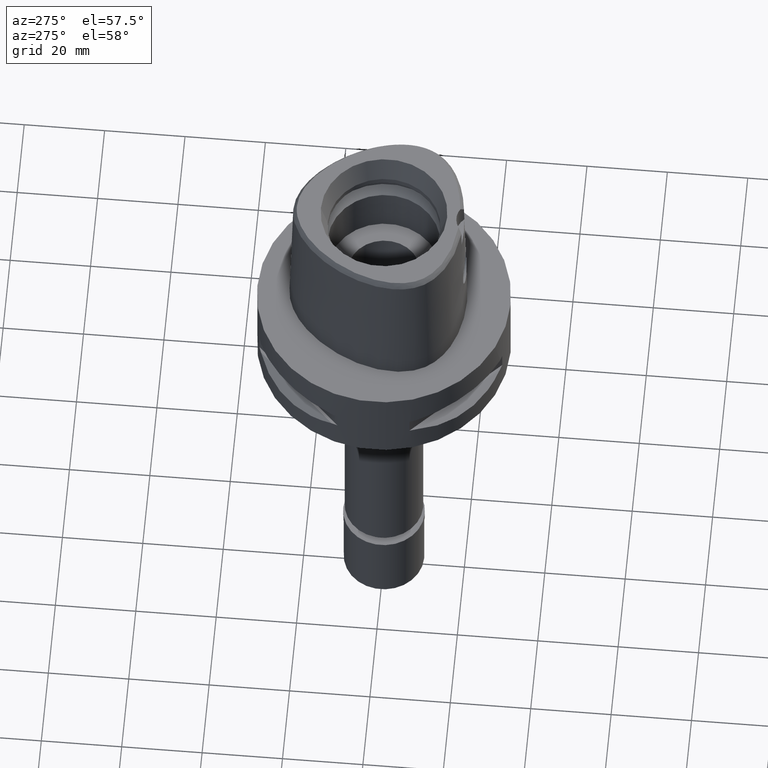
[diagram: clean part render]
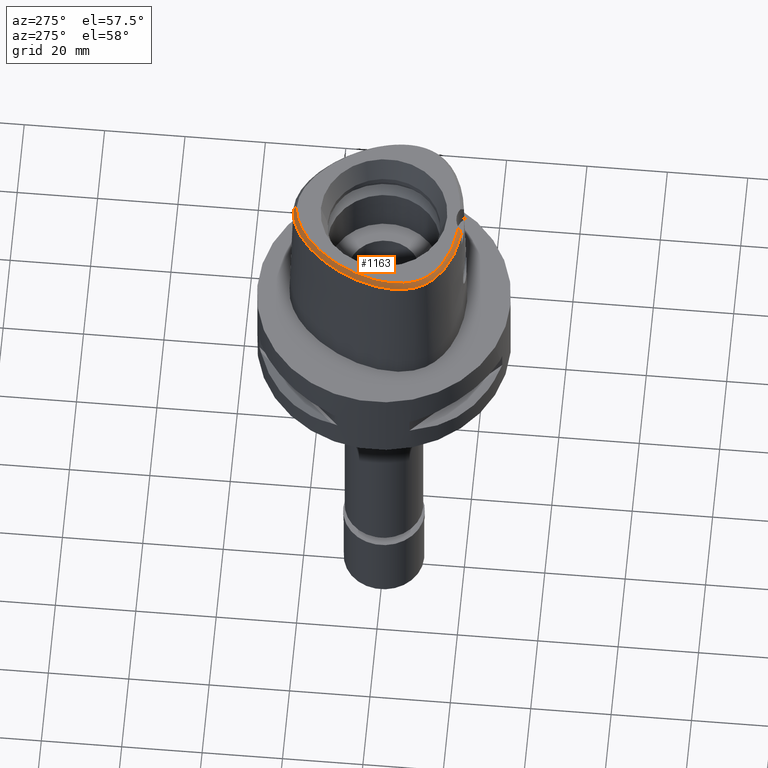
[diagram: same view with one face highlighted and labeled with its STEP entity id]
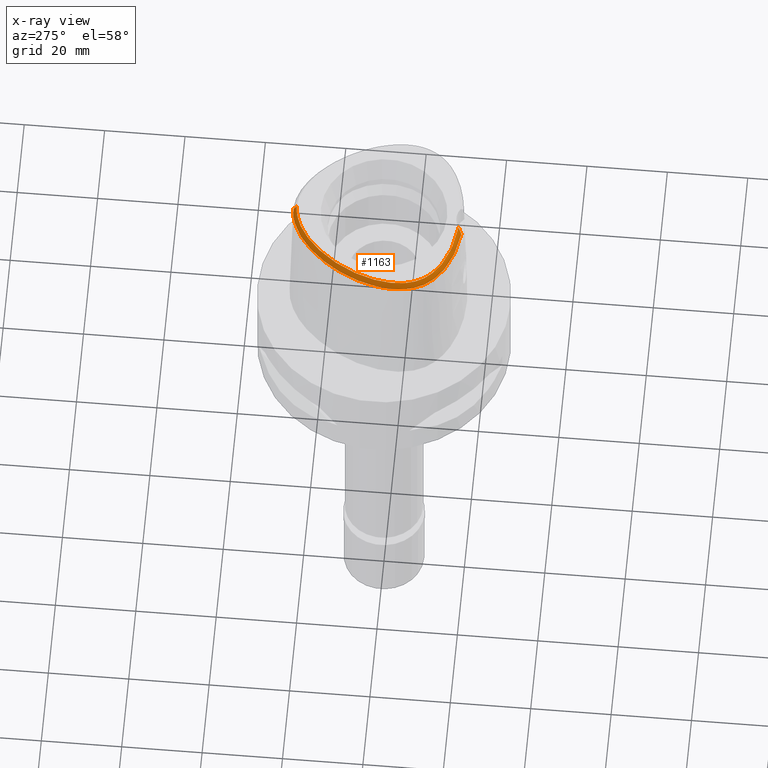
[diagram: x-ray of the same camera — body ghosted, the highlighted face saturated]
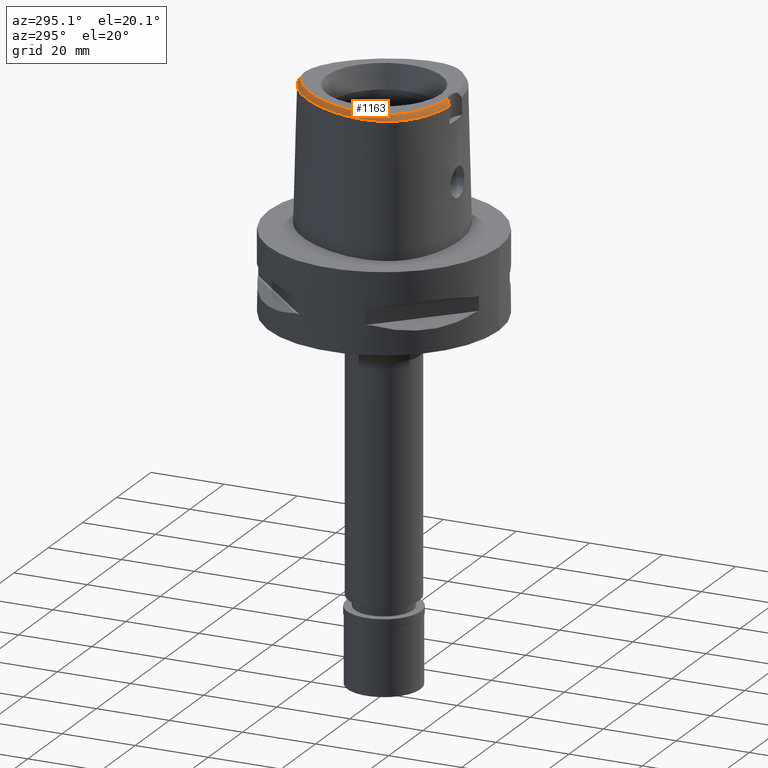
[diagram: same view with one face highlighted and labeled with its STEP entity id]
A machine part, auxiliary view. The second image highlights one B-rep face of the part: STEP entity #1163.
The next image is the same camera in x-ray: the body ghosted, the highlighted face saturated — about 0% of this face is hidden behind the body in this view.
A second angle (auxiliary view) of the same face is appended — the face is thin or edge-on in the first view.
In plain terms, the highlighted face is a freeform B-spline surface patch.
Its self-contained STEP definition (entity closure, byte-faithful):
#13 = CARTESIAN_POINT ( 'NONE',  ( -10.66256195749000035, 17.05506717343999767, 37.56759634049999619 ) ) ;
#19 = CARTESIAN_POINT ( 'NONE',  ( -13.33457781970174416, -15.85148397417496291, 38.00000000000325429 ) ) ;
#40 = CARTESIAN_POINT ( 'NONE',  ( -19.54057478934999992, 1.493607280873000098, 38.18095997088000360 ) ) ;
#47 = CARTESIAN_POINT ( 'NONE',  ( -5.058220461389721478, 20.53445508814391474, 37.99999999999948130 ) ) ;
#64 = CARTESIAN_POINT ( 'NONE',  ( -14.55025428635000040, 12.69926711138000108, 37.56759547042999969 ) ) ;
#65 = CARTESIAN_POINT ( 'NONE',  ( 0.6289092949151000589, 22.28927437255999777, 36.95422980688000081 ) ) ;
#68 = CARTESIAN_POINT ( 'NONE',  ( -6.188376196366935922, -18.31830638231286912, 37.99999999999585043 ) ) ;
#76 = CARTESIAN_POINT ( 'NONE',  ( -3.014271304877154556, -18.99139391534703591, 37.59976690303471969 ) ) ;
#85 = CARTESIAN_POINT ( 'NONE',  ( -19.88562090098168511, 4.345879983792093171, 36.52186244848008556 ) ) ;
#89 = CARTESIAN_POINT ( 'NONE',  ( -20.24400256382999785, 1.674241162565999863, 36.95423284470999903 ) ) ;
#91 = CARTESIAN_POINT ( 'NONE',  ( -1.400656934287000110, 22.22543964575000075, 36.95422974118000070 ) ) ;
#116 = CARTESIAN_POINT ( 'NONE',  ( -17.37216246377000317, -13.66586443400000128, 36.95423005896999769 ) ) ;
#118 = CARTESIAN_POINT ( 'NONE',  ( -5.311478316524000043, 21.09948932654999965, 36.95423043509000394 ) ) ;
#139 = B_SPLINE_CURVE_WITH_KNOTS ( 'NONE', 3,
 ( #4758, #3432, #809, #859, #1594, #3561, #1859, #2427, #1242, #1472, #2345, #4991, #1265, #421, #85, #3615, #1090, #4003, #470, #3818, #3049, #3921, #3196 ),
 .UNSPECIFIED., .F., .F.,
 ( 4, 1, 1, 1, 1, 1, 1, 1, 1, 1, 1, 1, 1, 1, 1, 1, 1, 1, 1, 1, 4 ),
 ( 0.0000000000000000000, 0.03580973941721924542, 0.1234633994701801463, 0.1672902294965028236, 0.2111170595230359437, 0.2549438895494638424, 0.2768573045626777085, 0.2987707195758917411, 0.3206841345892108563, 0.3425975496024247224, 0.3864243796288526211, 0.4302512096552805199, 0.4740780396817084186, 0.5617316997346692986, 0.6493853597876302342, 0.7370390198404860316, 0.8246926798933418290, 0.8685195099198749213, 0.9123463399462922174, 0.9561731699727411549, 1.000000000000000000 ),
 .UNSPECIFIED. ) ;
#141 = CARTESIAN_POINT ( 'NONE',  ( -20.40284405066000062, -7.069803685269000049, 37.56759523118999766 ) ) ;
#143 = CARTESIAN_POINT ( 'NONE',  ( -6.705033050041000031, 19.56224517346999647, 38.18096044239999998 ) ) ;
#163 = CARTESIAN_POINT ( 'NONE',  ( -21.11760553026999787, -7.199102701368000901, 36.34086476699000201 ) ) ;
#165 = CARTESIAN_POINT ( 'NONE',  ( -8.514304571949999456, 18.36058416618999800, 38.18096050130999686 ) ) ;
#185 = CARTESIAN_POINT ( 'NONE',  ( -21.34428069822999774, -5.342019748918999333, 36.34086596496999988 ) ) ;
#210 = CARTESIAN_POINT ( 'NONE',  ( -20.63876692223999854, -3.266836172437999952, 37.56759527082000005 ) ) ;
#233 = CARTESIAN_POINT ( 'NONE',  ( -15.65189600198999642, -14.21401850576000037, 38.18096042716000227 ) ) ;
#259 = CARTESIAN_POINT ( 'NONE',  ( -11.41529577253000127, -17.04472489425999981, 37.56759521252999434 ) ) ;
#283 = CARTESIAN_POINT ( 'NONE',  ( -3.626155504780999905, -19.68468267345999934, 36.34086585567000327 ) ) ;
#305 = VERTEX_POINT ( 'NONE', #4733 ) ;
#307 = CARTESIAN_POINT ( 'NONE',  ( -7.745912935872000027, -18.61162622464000194, 36.95423201581999706 ) ) ;
#336 = CARTESIAN_POINT ( 'NONE',  ( -2.084321703512999502, -19.07919178942000116, 37.56759551681999909 ) ) ;
#351 = CARTESIAN_POINT ( 'NONE',  ( -2.841965291530460735, -18.76757795571698395, 37.99999999999811706 ) ) ;
#357 = ORIENTED_EDGE ( 'NONE', *, *, #3039, .F. ) ;
#369 = CARTESIAN_POINT ( 'NONE',  ( -20.90431952104000146, 0.4206167189860000599, 36.34086851486999592 ) ) ;
#377 = CARTESIAN_POINT ( 'NONE',  ( -16.88647904405386768, 8.517821442303011636, 37.99999999999936762 ) ) ;
#396 = CARTESIAN_POINT ( 'NONE',  ( -21.13133980123999933, -0.8626773462562999928, 36.34086547350999297 ) ) ;
#404 = CARTESIAN_POINT ( 'NONE',  ( -14.21001600787387886, -15.34519100085903709, 37.99999999999946709 ) ) ;
#421 = CARTESIAN_POINT ( 'NONE',  ( -21.07430010673126830, -0.4408303445193108017, 36.52186244848008556 ) ) ;
#425 = CARTESIAN_POINT ( 'NONE',  ( -16.94083516559999936, 10.41317883283999990, 36.34086497297999330 ) ) ;
#428 = CARTESIAN_POINT ( 'NONE',  ( -2.798112137964000379, 21.59390788522999927, 37.56759543479000030 ) ) ;
#431 = CARTESIAN_POINT ( 'NONE',  ( -6.759433772717353683, 19.65454812512683702, 37.99999999999300115 ) ) ;
#451 = CARTESIAN_POINT ( 'NONE',  ( -19.14877230880999903, 6.051190956035999768, 36.34086529085000450 ) ) ;
#452 = CARTESIAN_POINT ( 'NONE',  ( -4.475033938823999691, 21.44522990907000448, 36.95423009969999839 ) ) ;
#457 = CARTESIAN_POINT ( 'NONE',  ( -3.481017203588929743, 21.13509756882016077, 37.99999999999588596 ) ) ;
#470 = CARTESIAN_POINT ( 'NONE',  ( -7.108589416785387805, 20.52412325828905182, 36.52186244848008556 ) ) ;
#475 = CARTESIAN_POINT ( 'NONE',  ( -11.15318555136000001, 17.59054625291999940, 36.34086902337999447 ) ) ;
#503 = CARTESIAN_POINT ( 'NONE',  ( -18.90024571505999873, -10.42003402676999890, 38.18096047480999999 ) ) ;
#504 = CARTESIAN_POINT ( 'NONE',  ( -4.604346859430999750, 21.78460708006000246, 36.34086492661999301 ) ) ;
#525 = CARTESIAN_POINT ( 'NONE',  ( -18.82596428545000222, -11.94136981740999914, 36.95422993305000148 ) ) ;
#528 = CARTESIAN_POINT ( 'NONE',  ( -0.6431847612529000280, 21.56683532231999934, 38.18096046958000045 ) ) ;
#551 = CARTESIAN_POINT ( 'NONE',  ( -19.44884275121999906, -9.190609152257000147, 38.18096039203999936 ) ) ;
#553 = CARTESIAN_POINT ( 'NONE',  ( -9.687490976220999528, 17.90285788421000035, 37.56759568544000416 ) ) ;
#576 = CARTESIAN_POINT ( 'NONE',  ( -18.89504151006000043, -11.16836734383000085, 37.56759533163999976 ) ) ;
#599 = CARTESIAN_POINT ( 'NONE',  ( -19.85145090578000193, -10.12197162234999936, 36.95423023587999722 ) ) ;
#625 = CARTESIAN_POINT ( 'NONE',  ( -9.209542277259998855, -18.59166100425999701, 36.34086920112999763 ) ) ;
#649 = CARTESIAN_POINT ( 'NONE',  ( -4.845988486008999452, -19.53954958520999696, 36.34086498597000059 ) ) ;
#672 = CARTESIAN_POINT ( 'NONE',  ( -11.27715260628000138, -16.70888800023000087, 38.18096047110000058 ) ) ;
#696 = CARTESIAN_POINT ( 'NONE',  ( -12.79211667062000046, -17.22864983341000311, 36.34086476615000549 ) ) ;
#721 = CARTESIAN_POINT ( 'NONE',  ( -10.25645946156000043, -17.48788222652000002, 37.56759596586999805 ) ) ;
#737 = CARTESIAN_POINT ( 'NONE',  ( -19.54919922641827412, -9.228169790568216513, 37.99999999999978684 ) ) ;
#755 = CARTESIAN_POINT ( 'NONE',  ( -20.54851908446000053, 0.3480236250200999804, 36.95423236142000434 ) ) ;
#762 = CARTESIAN_POINT ( 'NONE',  ( -17.45119705493921103, -12.68365517585203328, 37.99999999999808153 ) ) ;
#787 = CARTESIAN_POINT ( 'NONE',  ( -15.46011630721999985, 11.39886580044999853, 37.56759554525000055 ) ) ;
#809 = CARTESIAN_POINT ( 'NONE',  ( -7.300578999876664810, -19.07170748891775602, 36.52186244848008556 ) ) ;
#812 = CARTESIAN_POINT ( 'NONE',  ( -14.84279167351999895, 12.91437863011999987, 36.95423057768000064 ) ) ;
#819 = CARTESIAN_POINT ( 'NONE',  ( -11.46564124494183190, 15.92741340513488879, 37.99999999999398170 ) ) ;
#839 = CARTESIAN_POINT ( 'NONE',  ( -13.17291435179000025, 15.54651042557999929, 36.34086584048999669 ) ) ;
#841 = CARTESIAN_POINT ( 'NONE',  ( -6.178105780226999855, 20.68227318002000104, 36.95423052446000156 ) ) ;
#844 = CARTESIAN_POINT ( 'NONE',  ( -19.64434054693042242, 1.520253387635711384, 37.99999999999352696 ) ) ;
#859 = CARTESIAN_POINT ( 'NONE',  ( -10.91891098964890539, -18.03046406389985279, 36.52186244848008556 ) ) ;
#865 = CARTESIAN_POINT ( 'NONE',  ( -19.37823510519000081, 4.468087652039000268, 36.95422972326999655 ) ) ;
#867 = CARTESIAN_POINT ( 'NONE',  ( -2.131480048508000102, 22.11138449615999946, 36.95423010712999456 ) ) ;
#890 = CARTESIAN_POINT ( 'NONE',  ( -20.76022479046999791, -7.134453193318999631, 36.95422999909000339 ) ) ;
#891 = CARTESIAN_POINT ( 'NONE',  ( -5.014396619858000115, 20.43668133534000120, 38.18096038784999280 ) ) ;
#900 = VERTEX_POINT ( 'NONE', #2912 ) ;
#915 = CARTESIAN_POINT ( 'NONE',  ( -16.28954360298000381, -13.68414152745000045, 38.18096046427000090 ) ) ;
#918 = CARTESIAN_POINT ( 'NONE',  ( 0.3873575349842999782, 21.57487732453999740, 38.18096044352999741 ) ) ;
#942 = CARTESIAN_POINT ( 'NONE',  ( -20.29346479751000132, -4.310417654949000976, 38.18096042429999670 ) ) ;
#946 = CARTESIAN_POINT ( 'NONE',  ( -2.198610142448000015, 22.46832673332999875, 36.34086493839999576 ) ) ;
#967 = CARTESIAN_POINT ( 'NONE',  ( -19.18805686710000202, -9.826026230768999170, 38.18096042231999832 ) ) ;
#969 = CARTESIAN_POINT ( 'NONE',  ( -7.997872107140998388, 19.61022361500000244, 36.95423014351000290 ) ) ;
#992 = CARTESIAN_POINT ( 'NONE',  ( -18.39577477110000103, -12.52190295363000061, 36.95423050591999470 ) ) ;
#1020 = CARTESIAN_POINT ( 'NONE',  ( -15.35595940868000042, -15.33488980712999883, 36.95423073623999954 ) ) ;
#1041 = CARTESIAN_POINT ( 'NONE',  ( -8.899617061423001019, -17.54729715349999708, 38.18095997966999988 ) ) ;
#1062 = CARTESIAN_POINT ( 'NONE',  ( -6.374059908797000240, -19.28281954846000090, 36.34086477395999992 ) ) ;
#1084 = CARTESIAN_POINT ( 'NONE',  ( -10.49788417169999910, -18.17284559089999973, 36.34086758592999900 ) ) ;
#1090 = CARTESIAN_POINT ( 'NONE',  ( -13.70645028111241714, 15.04851272300241760, 36.52186244848008556 ) ) ;
#1112 = CARTESIAN_POINT ( 'NONE',  ( -2.687190707649000032, -19.40231776635999950, 36.95423075697999593 ) ) ;
#1153 = CARTESIAN_POINT ( 'NONE',  ( -20.30498420086448519, -2.177378896257993635, 38.00000000000548539 ) ) ;
#1163 = ADVANCED_FACE ( 'NONE', ( #3204 ), #1297, .F. ) ;
#1172 = CARTESIAN_POINT ( 'NONE',  ( -20.55975917773000106, -2.152306187767000001, 37.56759516333999471 ) ) ;
#1200 = CARTESIAN_POINT ( 'NONE',  ( -12.90239561086000109, 15.30428049974000082, 36.95423067572999543 ) ) ;
#1205 = CARTESIAN_POINT ( 'NONE',  ( -19.28591707037225689, -9.869682450886910985, 37.99999999999829470 ) ) ;
#1220 = CARTESIAN_POINT ( 'NONE',  ( -12.16442442327999984, 16.61769900246000020, 36.34086882375000727 ) ) ;
#1221 = CARTESIAN_POINT ( 'NONE',  ( -4.345721018218000609, 21.10585273807999940, 37.56759527279000110 ) ) ;
#1227 = CARTESIAN_POINT ( 'NONE',  ( -4.254559144977963392, 20.86660163697487747, 37.99999999999435829 ) ) ;
#1242 = CARTESIAN_POINT ( 'NONE',  ( -19.55745547455605760, -11.29150218115963966, 36.52186244848008556 ) ) ;
#1246 = CARTESIAN_POINT ( 'NONE',  ( -14.25771689918000007, 12.48415559263000141, 38.18096036316999431 ) ) ;
#1248 = CARTESIAN_POINT ( 'NONE',  ( 0.6490414262982999727, 22.65167472582999864, 36.34086446203999543 ) ) ;
#1251 = CARTESIAN_POINT ( 'NONE',  ( -20.38301517462629064, -3.278344853328147401, 38.00000000000532197 ) ) ;
#1265 = CARTESIAN_POINT ( 'NONE',  ( -21.32871527670113920, -4.105831244393817414, 36.52186244848008556 ) ) ;
#1271 = CARTESIAN_POINT ( 'NONE',  ( -16.00613874773999967, 9.853724074855000126, 38.18096044082999896 ) ) ;
#1273 = CARTESIAN_POINT ( 'NONE',  ( -2.709578167064000009, 21.24167096017999867, 38.18096037808999910 ) ) ;
#1296 = CARTESIAN_POINT ( 'NONE',  ( -17.62775695662999809, -13.92389342347000003, 36.34086486199999655 ) ) ;
#1297 = B_SPLINE_SURFACE_WITH_KNOTS ( 'NONE', 3, 3, ( 
 ( #4430, #2821, #65, #1248 ),
 ( #918, #2900, #1674, #2796 ),
 ( #4452, #2507, #3569, #3625 ),
 ( #528, #1993, #4763, #4378 ),
 ( #4741, #3231, #91, #4816 ),
 ( #4788, #1298, #867, #946 ),
 ( #1273, #428, #2019, #3178 ),
 ( #2432, #1699, #2850, #4038 ),
 ( #4404, #1221, #452, #504 ),
 ( #891, #2068, #118, #2479 ),
 ( #2406, #2094, #841, #3671 ),
 ( #143, #4842, #3982, #4477 ),
 ( #3308, #4866, #969, #3694 ),
 ( #165, #4082, #1349, #1727 ),
 ( #2927, #553, #2119, #2742 ),
 ( #3567, #13, #3201, #475 ),
 ( #4352, #1968, #2770, #1220 ),
 ( #2018, #1599, #1200, #839 ),
 ( #4278, #2404, #3130, #1575 ),
 ( #1246, #64, #812, #4306 ),
 ( #2041, #787, #3154, #3543 ),
 ( #1271, #3594, #2320, #425 ),
 ( #4329, #3177, #4716, #1623 ),
 ( #2380, #2794, #4762, #1992 ),
 ( #3950, #2819, #2352, #451 ),
 ( #3897, #4376, #865, #3511 ),
 ( #1938, #1646, #3924, #2431 ),
 ( #40, #4007, #89, #3623 ),
 ( #5068, #3230, #755, #369 ),
 ( #4786, #1545, #4686, #396 ),
 ( #4740, #1172, #3980, #4450 ),
 ( #2872, #210, #4475, #3740 ),
 ( #942, #4428, #2114, #3254 ),
 ( #4909, #4125, #2454, #185 ),
 ( #4080, #2504, #3690, #1346 ),
 ( #2945, #141, #890, #163 ),
 ( #1748, #4035, #4058, #1723 ),
 ( #1697, #3278, #2925, #4840 ),
 ( #551, #3306, #4861, #2169 ),
 ( #967, #4815, #599, #2848 ),
 ( #503, #2527, #4101, #1367 ),
 ( #3331, #576, #3669, #4886 ),
 ( #4403, #2144, #525, #1325 ),
 ( #3717, #4497, #992, #2897 ),
 ( #1776, #2067, #2556, #1673 ),
 ( #3352, #3647, #116, #1296 ),
 ( #915, #2478, #2092, #3789 ),
 ( #233, #4960, #2604, #4244 ),
 ( #2630, #3425, #1020, #2291 ),
 ( #3836, #2580, #1440, #5008 ),
 ( #4196, #2654, #1492, #1804 ),
 ( #4219, #4600, #4149, #696 ),
 ( #672, #259, #2241, #1416 ),
 ( #2680, #721, #3069, #1084 ),
 ( #1041, #1824, #3014, #625 ),
 ( #4573, #2266, #307, #3813 ),
 ( #3401, #3863, #4170, #1062 ),
 ( #2993, #4525, #2972, #649 ),
 ( #4550, #4983, #4627, #283 ),
 ( #2218, #1465, #1112, #1854 ),
 ( #3041, #1881, #1906, #3383 ),
 ( #3452, #336, #3478, #1392 ) ),
 .UNSPECIFIED., .F., .F., .F.,
 ( 4, 1, 1, 1, 1, 1, 1, 1, 1, 1, 1, 1, 1, 1, 1, 1, 1, 1, 1, 1, 1, 1, 1, 1, 1, 1, 1, 1, 1, 1, 1, 1, 1, 1, 1, 1, 1, 1, 1, 1, 1, 1, 1, 1, 1, 1, 1, 1, 1, 1, 1, 1, 1, 1, 1, 1, 1, 1, 1, 4 ),
 ( 4, 4 ),
 ( -0.01585043674195000044, 0.0000000000000000000, 0.01776034072165999858, 0.03552068144391999638, 0.05328102216616999870, 0.07104136288842999303, 0.08880170361069000817, 0.1065620443330000111, 0.1243223850551999909, 0.1420827257775000019, 0.1598430664997000095, 0.1776034072219000171, 0.1953637479442000002, 0.2131240886664000078, 0.2308844293887999943, 0.2486447701109999742, 0.2664051108332999851, 0.2841654515554999927, 0.3019257922778000314, 0.3196861329999999835, 0.3374464737223000221, 0.3552068144444999742, 0.3729671551668000129, 0.3907274958890999961, 0.4084878366113000037, 0.4262481773335999868, 0.4440085180557999944, 0.4617688587780999776, 0.4795291995003000407, 0.4972895402225999684, 0.5150498809447999760, 0.5328102216671000146, 0.5505705623893999423, 0.5683309031115999499, 0.5860912438338999886, 0.6038515845561001072, 0.6216119252783999238, 0.6393722660005999314, 0.6571326067228999701, 0.6748929474452000088, 0.6926532881674000164, 0.7104136288896999440, 0.7281739696118999516, 0.7459343103341999903, 0.7636946510563999979, 0.7814549917787000366, 0.7992153325008999332, 0.8169756732231999719, 0.8347360139455000105, 0.8524963546678000492, 0.8702566953900000568, 0.8880170361122000644, 0.9057773768344999921, 0.9235377175566999997, 0.9412980582790000383, 0.9590583990012000459, 0.9768187397236000047, 0.9945790804457999013, 1.000000000000000000, 1.006922200500000031 ),
 ( -0.09848495474835999852, 1.098506880575999878 ),
 .UNSPECIFIED. ) ;
#1298 = CARTESIAN_POINT ( 'NONE',  ( -2.064349954568000189, 21.75444225899000017, 37.56759527585999336 ) ) ;
#1325 = CARTESIAN_POINT ( 'NONE',  ( -19.12419933779000303, -12.14867648164999991, 36.34086466221000222 ) ) ;
#1346 = CARTESIAN_POINT ( 'NONE',  ( -21.25414493693000040, -6.300759691285000130, 36.34086541999000275 ) ) ;
#1349 = CARTESIAN_POINT ( 'NONE',  ( -8.947590669916998252, 18.94346474471999642, 36.95422977940999942 ) ) ;
#1367 = CARTESIAN_POINT ( 'NONE',  ( -19.86587745853000087, -10.92489386509999960, 36.34086466141999949 ) ) ;
#1392 = CARTESIAN_POINT ( 'NONE',  ( -2.128899211717000028, -19.80377360303000245, 36.34086586293999943 ) ) ;
#1401 = B_SPLINE_CURVE_WITH_KNOTS ( 'NONE', 3,
 ( #2720, #351, #4285, #3878, #68, #1920, #1603, #3494, #2750, #2800, #19, #404, #5052, #4356, #3183, #1526, #762, #3109, #1629, #3929, #2022, #1205, #737, #3575, #2774, #3209, #3136, #4664, #4767, #1251, #1153, #4312, #4744, #844, #2329, #3905, #4691, #1974, #377, #1581, #4721, #4334, #1946, #4256, #819, #3518, #5076, #2387, #3955, #431, #1998, #47, #1227, #457, #2410, #3986, #2097, #4065, #2482, #3674 ),
 .UNSPECIFIED., .F., .F.,
 ( 4, 1, 1, 1, 1, 1, 1, 1, 1, 1, 1, 1, 1, 1, 1, 1, 1, 1, 1, 1, 1, 1, 1, 1, 1, 1, 1, 1, 1, 1, 1, 1, 1, 1, 1, 1, 1, 1, 1, 1, 1, 1, 1, 1, 1, 1, 1, 1, 1, 1, 1, 1, 1, 1, 1, 1, 1, 4 ),
 ( 0.0000000000000000000, 0.005420919554200098744, 0.02318126027639999531, 0.04094160099879995407, 0.05870194172099996166, 0.07646228244330000035, 0.09422262316550000794, 0.1119829638877999356, 0.1297433046099999432, 0.1475036453321999508, 0.1652639860544999895, 0.1830243267768000281, 0.2007846674991000668, 0.2185450082212999634, 0.2363053489436000021, 0.2540656896658000097, 0.2718260303881000484, 0.2895863711103000560, 0.3073467118325999836, 0.3251070525547999912, 0.3428673932771000299, 0.3606277339994000686, 0.3783880747216000762, 0.3961484154438998928, 0.4139087561661000114, 0.4316690968884000501, 0.4494294376106000577, 0.4671897783328999854, 0.4849501190552000240, 0.5027104597774000316, 0.5204708004996999593, 0.5382311412219000779, 0.5559914819442000056, 0.5737518226664000132, 0.5915121633886999408, 0.6092725041108999484, 0.6270328448331999871, 0.6447931855555000258, 0.6625535262777000334, 0.6803138669999999610, 0.6980742077221999686, 0.7158345484445000073, 0.7335948891667000149, 0.7513552298890000536, 0.7691155706112000612, 0.7868759113336000199, 0.8046362520558000275, 0.8223965927780999552, 0.8401569335002999628, 0.8579172742224999704, 0.8756776149448000091, 0.8934379556670000166, 0.9111982963893099363, 0.9289586371115700070, 0.9467189778338299666, 0.9644793185560800453, 0.9822396592783400049, 1.000000000000000000 ),
 .UNSPECIFIED. ) ;
#1416 = CARTESIAN_POINT ( 'NONE',  ( -11.69158210504000017, -17.71639868230999681, 36.34086469539000319 ) ) ;
#1440 = CARTESIAN_POINT ( 'NONE',  ( -14.53411091833000057, -15.87277435708999995, 36.95423043225000725 ) ) ;
#1465 = CARTESIAN_POINT ( 'NONE',  ( -2.658709469047999985, -19.04044447587000022, 37.56759554456000672 ) ) ;
#1472 = CARTESIAN_POINT ( 'NONE',  ( -20.09619618740727987, -10.23243843868550584, 36.52186244848008556 ) ) ;
#1492 = CARTESIAN_POINT ( 'NONE',  ( -13.62934588695999949, -16.39598140902999646, 36.95423007514999370 ) ) ;
#1526 = CARTESIAN_POINT ( 'NONE',  ( -16.93638123745508395, -13.22593246128674238, 37.99999999999610623 ) ) ;
#1545 = CARTESIAN_POINT ( 'NONE',  ( -20.41324701691999977, -0.9713815225770000561, 37.56759541533000402 ) ) ;
#1575 = CARTESIAN_POINT ( 'NONE',  ( -14.16695280819000047, 14.38171481270000029, 36.34086443448000381 ) ) ;
#1581 = CARTESIAN_POINT ( 'NONE',  ( -16.09805956313917719, 9.908742513515418793, 38.00000000000113687 ) ) ;
#1594 = CARTESIAN_POINT ( 'NONE',  ( -14.22011356155980799, -16.41829364186101614, 36.52186244848008556 ) ) ;
#1599 = CARTESIAN_POINT ( 'NONE',  ( -12.63187686992000103, 15.06205057391000146, 37.56759551097000127 ) ) ;
#1603 = CARTESIAN_POINT ( 'NONE',  ( -8.930096025510323443, -17.65000298921506783, 38.00000000000080291 ) ) ;
#1611 = EDGE_CURVE ( 'NONE', #4443, #3883, #2917, .T. ) ;
#1623 = CARTESIAN_POINT ( 'NONE',  ( -17.75216329895999934, 8.981845170755001106, 36.34086534665999579 ) ) ;
#1629 = CARTESIAN_POINT ( 'NONE',  ( -18.31748213707716033, -11.58791794387770224, 37.99999999999553779 ) ) ;
#1640 = CARTESIAN_POINT ( 'NONE',  ( -1.703764269641000346E-11, 22.56201468012000078, 36.52186680743999858 ) ) ;
#1646 = CARTESIAN_POINT ( 'NONE',  ( -19.50775507108999918, 2.944369707471000019, 37.56759582986000368 ) ) ;
#1673 = CARTESIAN_POINT ( 'NONE',  ( -18.18323366282000109, -13.33887195521999836, 36.34086501107999823 ) ) ;
#1674 = CARTESIAN_POINT ( 'NONE',  ( 0.4143308841693000288, 22.30044866765000222, 36.95423011332999863 ) ) ;
#1697 = CARTESIAN_POINT ( 'NONE',  ( -19.68017427958000098, -8.511742549399000879, 38.18096044573999848 ) ) ;
#1699 = CARTESIAN_POINT ( 'NONE',  ( -3.558064136755000106, 21.37926555512999727, 37.56759540048999924 ) ) ;
#1723 = CARTESIAN_POINT ( 'NONE',  ( -20.93898503806999756, -8.041228132656998540, 36.34086482300999421 ) ) ;
#1727 = CARTESIAN_POINT ( 'NONE',  ( -9.164233718901000358, 19.23490503398999962, 36.34086441847000515 ) ) ;
#1748 = CARTESIAN_POINT ( 'NONE',  ( -19.88005676250999798, -7.784668012553000338, 38.18096045719000386 ) ) ;
#1776 = CARTESIAN_POINT ( 'NONE',  ( -17.37135444713000254, -12.61219124115000056, 38.18096043666999861 ) ) ;
#1804 = CARTESIAN_POINT ( 'NONE',  ( -13.80223331329999858, -16.71534015445999799, 36.34086488765999690 ) ) ;
#1824 = CARTESIAN_POINT ( 'NONE',  ( -9.002925466702000890, -17.89541843709000091, 37.56759638682000002 ) ) ;
#1854 = CARTESIAN_POINT ( 'NONE',  ( -2.715671946251000168, -19.76419105685000233, 36.34086596939000202 ) ) ;
#1859 = CARTESIAN_POINT ( 'NONE',  ( -17.90324032096406270, -13.53935111955719428, 36.52186244848008556 ) ) ;
#1868 = B_SPLINE_CURVE_WITH_KNOTS ( 'NONE', 3,
 ( #2006, #76, #3167, #4673 ),
 .UNSPECIFIED., .F., .F.,
 ( 4, 4 ),
 ( 0.0000000000000000000, 1.000000000000000000 ),
 .UNSPECIFIED. ) ;
#1881 = CARTESIAN_POINT ( 'NONE',  ( -2.291008634011999945, -19.06647256794999734, 37.56759553093000648 ) ) ;
#1906 = CARTESIAN_POINT ( 'NONE',  ( -2.315521132423999706, -19.42862665352999940, 36.95423072398999409 ) ) ;
#1920 = CARTESIAN_POINT ( 'NONE',  ( -7.599370508970784144, -18.01010694911451182, 37.99999999999960210 ) ) ;
#1938 = CARTESIAN_POINT ( 'NONE',  ( -19.16091797369999838, 2.836849250410000245, 38.18096021276000585 ) ) ;
#1946 = CARTESIAN_POINT ( 'NONE',  ( -13.40435640711869780, 13.76268382997565176, 37.99999999999705835 ) ) ;
#1956 = VECTOR ( 'NONE', #2496, 1000.000000000000227 ) ;
#1968 = CARTESIAN_POINT ( 'NONE',  ( -11.64775851462999867, 16.10731603042000160, 37.56759628846999988 ) ) ;
#1974 = CARTESIAN_POINT ( 'NONE',  ( -17.60426951087087133, 7.098774535282195153, 37.99999999999226930 ) ) ;
#1992 = CARTESIAN_POINT ( 'NONE',  ( -18.49091913763999884, 7.521364999668000095, 36.34086600132000200 ) ) ;
#1993 = CARTESIAN_POINT ( 'NONE',  ( -0.6659426915177000250, 21.92933346593000010, 37.56759521616999820 ) ) ;
#1998 = CARTESIAN_POINT ( 'NONE',  ( -5.893543501601013368, 20.13235399351933452, 38.00000000000220979 ) ) ;
#2006 = CARTESIAN_POINT ( 'NONE',  ( -2.682279906006999948, -18.78035848609999903, 38.00000000000000000 ) ) ;
#2018 = CARTESIAN_POINT ( 'NONE',  ( -12.36135812898000097, 14.81982064806999944, 38.18096034621000001 ) ) ;
#2019 = CARTESIAN_POINT ( 'NONE',  ( -2.886646108863000215, 21.94614481027000252, 36.95423049147999706 ) ) ;
#2022 = CARTESIAN_POINT ( 'NONE',  ( -18.99520880204540063, -10.46968343925892775, 37.99999999999971578 ) ) ;
#2041 = CARTESIAN_POINT ( 'NONE',  ( -15.15770457612000044, 11.19787570500000129, 38.18096033186999705 ) ) ;
#2067 = CARTESIAN_POINT ( 'NONE',  ( -17.64198085235999969, -12.85441814584000042, 37.56759529480999760 ) ) ;
#2068 = CARTESIAN_POINT ( 'NONE',  ( -5.162937468191000079, 20.76808533094000353, 37.56759541147000192 ) ) ;
#2092 = CARTESIAN_POINT ( 'NONE',  ( -16.76936351940999970, -14.22946897747999984, 36.95422999348000559 ) ) ;
#2094 = CARTESIAN_POINT ( 'NONE',  ( -6.011204255105999650, 20.35973446770999828, 37.56759544842000054 ) ) ;
#2097 = CARTESIAN_POINT ( 'NONE',  ( -1.323674540694006252, 21.61098849316251602, 38.00000000000299849 ) ) ;
#2114 = CARTESIAN_POINT ( 'NONE',  ( -21.01974936506999825, -4.317196316073999895, 36.95423022445000072 ) ) ;
#2119 = CARTESIAN_POINT ( 'NONE',  ( -9.918924145315999752, 18.18268914957999982, 36.95423109768999836 ) ) ;
#2144 = CARTESIAN_POINT ( 'NONE',  ( -18.52772923311000142, -11.73406315317000015, 37.56759520387999629 ) ) ;
#2169 = CARTESIAN_POINT ( 'NONE',  ( -20.46931713964000110, -9.572544342120998806, 36.34086542027999656 ) ) ;
#2218 = CARTESIAN_POINT ( 'NONE',  ( -2.630228230445999849, -18.67857118537000005, 38.18096033214999352 ) ) ;
#2241 = CARTESIAN_POINT ( 'NONE',  ( -11.55343893879000028, -17.38056178828000142, 36.95422995396000942 ) ) ;
#2266 = CARTESIAN_POINT ( 'NONE',  ( -7.659962842055000998, -18.25882301770000282, 37.56759606506999916 ) ) ;
#2291 = CARTESIAN_POINT ( 'NONE',  ( -15.56300308161000068, -15.63325843798000037, 36.34086593648999752 ) ) ;
#2320 = CARTESIAN_POINT ( 'NONE',  ( -16.62926969298000301, 10.22669391350999923, 36.95423012892999282 ) ) ;
#2329 = CARTESIAN_POINT ( 'NONE',  ( -19.26324493738683685, 2.868570891457185024, 38.00000000000322586 ) ) ;
#2340 = ORIENTED_EDGE ( 'NONE', *, *, #1611, .F. ) ;
#2345 = CARTESIAN_POINT ( 'NONE',  ( -20.67704215116074806, -8.734985316449565218, 36.52186244848008556 ) ) ;
#2352 = CARTESIAN_POINT ( 'NONE',  ( -18.81392784009000252, 5.910724249532000485, 36.95423032929000584 ) ) ;
#2380 = CARTESIAN_POINT ( 'NONE',  ( -17.50756339309999987, 7.052682954138999705, 38.18096032865999234 ) ) ;
#2387 = CARTESIAN_POINT ( 'NONE',  ( -8.578220530113480180, 18.44656747109381456, 38.00000000000023448 ) ) ;
#2404 = CARTESIAN_POINT ( 'NONE',  ( -13.60310471522999975, 13.92401603704000124, 37.56759514452999582 ) ) ;
#2406 = CARTESIAN_POINT ( 'NONE',  ( -5.844302729985999534, 20.03719575539999909, 38.18096037238999685 ) ) ;
#2410 = CARTESIAN_POINT ( 'NONE',  ( -2.735698246183202897, 21.34559102902440841, 37.99999999999875655 ) ) ;
#2427 = CARTESIAN_POINT ( 'NONE',  ( -18.90964971338464551, -12.28759719904342518, 36.52186244848008556 ) ) ;
#2431 = CARTESIAN_POINT ( 'NONE',  ( -20.20142926589000254, 3.159410621595000190, 36.34086706405999934 ) ) ;
#2432 = CARTESIAN_POINT ( 'NONE',  ( -3.448773228204999874, 21.03291379308000231, 38.18096039243999940 ) ) ;
#2454 = CARTESIAN_POINT ( 'NONE',  ( -20.98187601020000059, -5.318526329123000274, 36.95423075419000014 ) ) ;
#2478 = CARTESIAN_POINT ( 'NONE',  ( -16.52945356118999953, -13.95680525246000059, 37.56759522888000191 ) ) ;
#2479 = CARTESIAN_POINT ( 'NONE',  ( -5.460019164857000007, 21.43089332215000198, 36.34086545870999885 ) ) ;
#2482 = CARTESIAN_POINT ( 'NONE',  ( -0.2181979014508635406, 21.68728795389083075, 37.99999999999754863 ) ) ;
#2496 = DIRECTION ( 'NONE',  ( -1.028724158622013208E-11, -0.5092834681090075977, 0.8605988316927122295 ) ) ;
#2504 = CARTESIAN_POINT ( 'NONE',  ( -20.53313234065999993, -6.212893240781999893, 37.56759540138000375 ) ) ;
#2507 = CARTESIAN_POINT ( 'NONE',  ( -0.02611611014352000285, 21.94935227472000250, 37.56759536579999548 ) ) ;
#2527 = CARTESIAN_POINT ( 'NONE',  ( -19.22212296288000033, -10.58832063955000002, 37.56759520367999983 ) ) ;
#2556 = CARTESIAN_POINT ( 'NONE',  ( -17.91260725759000039, -13.09664505052999850, 36.95423015294999658 ) ) ;
#2580 = CARTESIAN_POINT ( 'NONE',  ( -14.34402270600999962, -15.56333606046000106, 37.56759541030000094 ) ) ;
#2604 = CARTESIAN_POINT ( 'NONE',  ( -16.09926320598999894, -14.78625066947999933, 36.95423020788999935 ) ) ;
#2630 = CARTESIAN_POINT ( 'NONE',  ( -14.94187206283000080, -14.73815254543000108, 38.18096033573999648 ) ) ;
#2654 = CARTESIAN_POINT ( 'NONE',  ( -13.45645846062999951, -16.07662266359000114, 37.56759526263999760 ) ) ;
#2680 = CARTESIAN_POINT ( 'NONE',  ( -10.13574710648999933, -17.14540054433000194, 38.18096015583999758 ) ) ;
#2720 = CARTESIAN_POINT ( 'NONE',  ( -2.682279906006999948, -18.78035848609999903, 38.00000000000000000 ) ) ;
#2742 = CARTESIAN_POINT ( 'NONE',  ( -10.15035731440999989, 18.46252041494999929, 36.34086650993999967 ) ) ;
#2750 = CARTESIAN_POINT ( 'NONE',  ( -11.31790883121348656, -16.80796958613451864, 37.99999999999527489 ) ) ;
#2770 = CARTESIAN_POINT ( 'NONE',  ( -11.90609146895999970, 16.36250751644000090, 36.95423255611000002 ) ) ;
#2774 = CARTESIAN_POINT ( 'NONE',  ( -19.98419490691751932, -7.809898894996019969, 38.00000000000207478 ) ) ;
#2794 = CARTESIAN_POINT ( 'NONE',  ( -17.83534864127999953, 7.208910302649000457, 37.56759555288000030 ) ) ;
#2796 = CARTESIAN_POINT ( 'NONE',  ( 0.4278175587617999986, 22.66323433920000241, 36.34086494824000368 ) ) ;
#2800 = CARTESIAN_POINT ( 'NONE',  ( -12.37132652997766158, -16.34104299087865542, 37.99999999999323563 ) ) ;
#2819 = CARTESIAN_POINT ( 'NONE',  ( -18.47908337137000245, 5.770257543027999425, 37.56759536772000274 ) ) ;
#2821 = CARTESIAN_POINT ( 'NONE',  ( 0.6087771635319000341, 21.92687401929999780, 37.56759515171999908 ) ) ;
#2848 = CARTESIAN_POINT ( 'NONE',  ( -20.18314792512000011, -10.26994431814000031, 36.34086514265000289 ) ) ;
#2850 = CARTESIAN_POINT ( 'NONE',  ( -3.667355045305999983, 21.72561731717999933, 36.95423040854000618 ) ) ;
#2872 = CARTESIAN_POINT ( 'NONE',  ( -20.27598361975999808, -3.283161211463000217, 38.18096044672000033 ) ) ;
#2897 = CARTESIAN_POINT ( 'NONE',  ( -18.68065915752000095, -12.74719807674000016, 36.34086557108000193 ) ) ;
#2900 = CARTESIAN_POINT ( 'NONE',  ( 0.4008442095768000035, 21.93766299609999848, 37.56759527842999802 ) ) ;
#2912 = CARTESIAN_POINT ( 'NONE',  ( -2.682279906006999948, -18.78035848609999903, 38.00000000000000000 ) ) ;
#2917 = LINE ( 'NONE', #1640, #1956 ) ;
#2925 = CARTESIAN_POINT ( 'NONE',  ( -20.37466781879999900, -8.724633179905000091, 36.95423010057000113 ) ) ;
#2927 = CARTESIAN_POINT ( 'NONE',  ( -9.456057807125999304, 17.62302661884000088, 38.18096027319000285 ) ) ;
#2945 = CARTESIAN_POINT ( 'NONE',  ( -20.04546331084999977, -7.005154177219999667, 38.18096046329999638 ) ) ;
#2972 = CARTESIAN_POINT ( 'NONE',  ( -4.794603811176000541, -19.18008879256000299, 36.95423013711999971 ) ) ;
#2993 = CARTESIAN_POINT ( 'NONE',  ( -4.691834461510999255, -18.46116720723999904, 38.18096043941999795 ) ) ;
#3014 = CARTESIAN_POINT ( 'NONE',  ( -9.106233871980998984, -18.24353972068000118, 36.95423279397000016 ) ) ;
#3039 = EDGE_CURVE ( 'NONE', #305, #4443, #139, .T. ) ;
#3041 = CARTESIAN_POINT ( 'NONE',  ( -2.266496135600000184, -18.70431848237999972, 38.18096033786000021 ) ) ;
#3049 = CARTESIAN_POINT ( 'NONE',  ( -2.376843896516414034, 22.39422508473533213, 36.52186244848008556 ) ) ;
#3069 = CARTESIAN_POINT ( 'NONE',  ( -10.37717181663000154, -17.83036390871000165, 36.95423177589999852 ) ) ;
#3109 = CARTESIAN_POINT ( 'NONE',  ( -17.91005512243619080, -12.13778127739492696, 37.99999999999764100 ) ) ;
#3130 = CARTESIAN_POINT ( 'NONE',  ( -13.88502876171000011, 14.15286542487000077, 36.95422978950999493 ) ) ;
#3136 = CARTESIAN_POINT ( 'NONE',  ( -20.27898581532415889, -6.181921586189741191, 37.99999999999734257 ) ) ;
#3154 = CARTESIAN_POINT ( 'NONE',  ( -15.76252803830999838, 11.59985589589999933, 36.95423075861999962 ) ) ;
#3167 = CARTESIAN_POINT ( 'NONE',  ( -3.339321438891591054, -19.25325016376766385, 37.10705438586138172 ) ) ;
#3177 = CARTESIAN_POINT ( 'NONE',  ( -17.11209416731999866, 8.638755570534000228, 37.56759538226999950 ) ) ;
#3178 = CARTESIAN_POINT ( 'NONE',  ( -2.975180079762000052, 22.29838173532000312, 36.34086554817999826 ) ) ;
#3183 = CARTESIAN_POINT ( 'NONE',  ( -16.36032397153524087, -13.76458520345177838, 38.00000000000376588 ) ) ;
#3196 = CARTESIAN_POINT ( 'NONE',  ( -1.703764269641000346E-11, 22.56201468012000078, 36.52186680743999858 ) ) ;
#3201 = CARTESIAN_POINT ( 'NONE',  ( -10.90787375442999974, 17.32280671318000032, 36.95423268193999888 ) ) ;
#3204 = FACE_OUTER_BOUND ( 'NONE', #4702, .T. ) ;
#3209 = CARTESIAN_POINT ( 'NONE',  ( -20.15090095365119893, -7.024227649787596839, 38.00000000000201794 ) ) ;
#3230 = CARTESIAN_POINT ( 'NONE',  ( -20.19271864787999959, 0.2754305310542000118, 37.56759620796999855 ) ) ;
#3231 = CARTESIAN_POINT ( 'NONE',  ( -1.355505205252000023, 21.86505163166000187, 37.56759512454999594 ) ) ;
#3254 = CARTESIAN_POINT ( 'NONE',  ( -21.38289164884999849, -4.320585646636000199, 36.34086512452000051 ) ) ;
#3278 = CARTESIAN_POINT ( 'NONE',  ( -20.02742104918999999, -8.618187864651998709, 37.56759527314999758 ) ) ;
#3300 = CARTESIAN_POINT ( 'NONE',  ( -3.470663397142000288E-11, 21.68728795390000030, 38.00000000000000000 ) ) ;
#3306 = CARTESIAN_POINT ( 'NONE',  ( -19.78900088069000063, -9.317920882212000322, 37.56759540145999665 ) ) ;
#3308 = CARTESIAN_POINT ( 'NONE',  ( -7.595930706887999762, 19.00528665206000412, 38.18096043829999786 ) ) ;
#3331 = CARTESIAN_POINT ( 'NONE',  ( -18.58445421138999976, -10.98005420738000026, 38.18096042125999645 ) ) ;
#3352 = CARTESIAN_POINT ( 'NONE',  ( -16.86097347806000002, -13.14980645506000023, 38.18096045293000174 ) ) ;
#3383 = CARTESIAN_POINT ( 'NONE',  ( -2.340033630836000356, -19.79078073909999702, 36.34086591706000036 ) ) ;
#3401 = CARTESIAN_POINT ( 'NONE',  ( -6.168123832388999972, -18.21310775477999755, 38.18096046253000253 ) ) ;
#3425 = CARTESIAN_POINT ( 'NONE',  ( -15.14891573576000106, -15.03652117628000084, 37.56759553599000157 ) ) ;
#3432 = CARTESIAN_POINT ( 'NONE',  ( -4.467522189395886301, -19.48130287050825871, 36.52186244848008556 ) ) ;
#3452 = CARTESIAN_POINT ( 'NONE',  ( -2.062032949410999905, -18.71690088262000273, 38.18096034376999626 ) ) ;
#3478 = CARTESIAN_POINT ( 'NONE',  ( -2.106610457614999987, -19.44148269623000047, 36.95423068987999926 ) ) ;
#3494 = CARTESIAN_POINT ( 'NONE',  ( -10.17136073855738410, -17.24644253470671629, 38.00000000000314060 ) ) ;
#3511 = CARTESIAN_POINT ( 'NONE',  ( -19.71943518440000176, 4.592331234141999730, 36.34086432939999867 ) ) ;
#3518 = CARTESIAN_POINT ( 'NONE',  ( -10.48962422759415247, 16.86631853278950643, 38.00000000000444800 ) ) ;
#3543 = CARTESIAN_POINT ( 'NONE',  ( -16.06493976940999957, 11.80084599135999923, 36.34086597200000313 ) ) ;
#3557 = ORIENTED_EDGE ( 'NONE', *, *, #4820, .T. ) ;
#3561 = CARTESIAN_POINT ( 'NONE',  ( -16.39211280192157716, -14.95758113318731475, 36.52186244848008556 ) ) ;
#3567 = CARTESIAN_POINT ( 'NONE',  ( -10.41725016056000008, 16.78732763369999859, 38.18095999906000060 ) ) ;
#3569 = CARTESIAN_POINT ( 'NONE',  ( -0.02690581186264999827, 22.31254144973000209, 36.95423032464000102 ) ) ;
#3575 = CARTESIAN_POINT ( 'NONE',  ( -19.78262210840669155, -8.543146992552467012, 38.00000000000214584 ) ) ;
#3594 = CARTESIAN_POINT ( 'NONE',  ( -16.31770422035999957, 10.04020899418000035, 37.56759528487999944 ) ) ;
#3615 = CARTESIAN_POINT ( 'NONE',  ( -17.27359245833552137, 9.972912913898888121, 36.52186244848008556 ) ) ;
#3623 = CARTESIAN_POINT ( 'NONE',  ( -20.59571645108000126, 1.764558103413000012, 36.34086928162000163 ) ) ;
#3625 = CARTESIAN_POINT ( 'NONE',  ( -0.02769551358178000064, 22.67573062474999901, 36.34086528348000655 ) ) ;
#3647 = CARTESIAN_POINT ( 'NONE',  ( -17.11656797091999849, -13.40783544452999898, 37.56759525594999616 ) ) ;
#3669 = CARTESIAN_POINT ( 'NONE',  ( -19.20562880872000022, -11.35668048027000054, 36.95423024200999862 ) ) ;
#3671 = CARTESIAN_POINT ( 'NONE',  ( -6.345007305346999971, 21.00481189233000023, 36.34086560048999814 ) ) ;
#3674 = CARTESIAN_POINT ( 'NONE',  ( -3.470663397142000288E-11, 21.68728795390000030, 38.00000000000000000 ) ) ;
#3690 = CARTESIAN_POINT ( 'NONE',  ( -20.89363863878999794, -6.256826466032999967, 36.95423041068000458 ) ) ;
#3694 = CARTESIAN_POINT ( 'NONE',  ( -8.198842807268000854, 19.91269209648000071, 36.34086499610999965 ) ) ;
#3717 = CARTESIAN_POINT ( 'NONE',  ( -17.82600599826999854, -12.07131270740999973, 38.18096037558999711 ) ) ;
#3740 = CARTESIAN_POINT ( 'NONE',  ( -21.36433352720000300, -3.234186094390000044, 36.34086491901999949 ) ) ;
#3789 = CARTESIAN_POINT ( 'NONE',  ( -17.00927347761999897, -14.50213270250000086, 36.34086475808000216 ) ) ;
#3813 = CARTESIAN_POINT ( 'NONE',  ( -7.831863029690000033, -18.96442943157999750, 36.34086796656999496 ) ) ;
#3818 = CARTESIAN_POINT ( 'NONE',  ( -4.757642277158500299, 21.67478330407649523, 36.52186244848008556 ) ) ;
#3836 = CARTESIAN_POINT ( 'NONE',  ( -14.15393449368000134, -15.25389776383000040, 38.18096038833999728 ) ) ;
#3863 = CARTESIAN_POINT ( 'NONE',  ( -6.236769191191000594, -18.56967835268000044, 37.56759523300999604 ) ) ;
#3878 = CARTESIAN_POINT ( 'NONE',  ( -4.706994425064947585, -18.56721852572367126, 38.00000000000727596 ) ) ;
#3883 = VERTEX_POINT ( 'NONE', #3300 ) ;
#3897 = CARTESIAN_POINT ( 'NONE',  ( -18.69583494677999980, 4.219600487834000546, 38.18096051101999677 ) ) ;
#3905 = CARTESIAN_POINT ( 'NONE',  ( -18.79649882725005483, 4.256255933891538668, 37.99999999999519673 ) ) ;
#3921 = CARTESIAN_POINT ( 'NONE',  ( -0.7901461696974171334, 22.56201478746458378, 36.52186244848008556 ) ) ;
#3924 = CARTESIAN_POINT ( 'NONE',  ( -19.85459216849000086, 3.051890164532999883, 36.95423144696000151 ) ) ;
#3929 = CARTESIAN_POINT ( 'NONE',  ( -18.67608643721467132, -11.03561202290818422, 38.00000000000013500 ) ) ;
#3950 = CARTESIAN_POINT ( 'NONE',  ( -18.14423890266000328, 5.629790836524000142, 38.18096040616000408 ) ) ;
#3955 = CARTESIAN_POINT ( 'NONE',  ( -7.655222869372062533, 19.09452359226225227, 37.99999999999390354 ) ) ;
#3980 = CARTESIAN_POINT ( 'NONE',  ( -20.92115693300999979, -2.116740604839999929, 36.95422983499000225 ) ) ;
#3982 = CARTESIAN_POINT ( 'NONE',  ( -7.073815393799000262, 20.18796661931000003, 36.95423011980999917 ) ) ;
#3986 = CARTESIAN_POINT ( 'NONE',  ( -2.017025177696346372, 21.50280829368161051, 37.99999999999799627 ) ) ;
#4003 = CARTESIAN_POINT ( 'NONE',  ( -10.15538788053441088, 18.47129535094326513, 36.52186244848008556 ) ) ;
#4007 = CARTESIAN_POINT ( 'NONE',  ( -19.89228867658999889, 1.583924221720000025, 37.56759640779999643 ) ) ;
#4035 = CARTESIAN_POINT ( 'NONE',  ( -20.23303285436999843, -7.870188052588000360, 37.56759524578999532 ) ) ;
#4038 = CARTESIAN_POINT ( 'NONE',  ( -3.776645953856999860, 22.07196907923000140, 36.34086541659999625 ) ) ;
#4058 = CARTESIAN_POINT ( 'NONE',  ( -20.58600894622000155, -7.955708092621999405, 36.95423003439999121 ) ) ;
#4065 = CARTESIAN_POINT ( 'NONE',  ( -0.6498990081535175323, 21.67378274708089592, 37.99999999999762679 ) ) ;
#4067 = ORIENTED_EDGE ( 'NONE', *, *, #4421, .F. ) ;
#4080 = CARTESIAN_POINT ( 'NONE',  ( -20.17262604252000102, -6.168960015531000707, 38.18096039206999137 ) ) ;
#4082 = CARTESIAN_POINT ( 'NONE',  ( -8.730947620933999787, 18.65202445545999765, 37.56759514035999814 ) ) ;
#4101 = CARTESIAN_POINT ( 'NONE',  ( -19.54400021069999838, -10.75660725232000026, 36.95422993254999966 ) ) ;
#4125 = CARTESIAN_POINT ( 'NONE',  ( -20.61947132215999900, -5.295032909327999526, 37.56759554341000040 ) ) ;
#4149 = CARTESIAN_POINT ( 'NONE',  ( -12.63655488327999876, -16.90051071241000002, 36.95422999856000246 ) ) ;
#4170 = CARTESIAN_POINT ( 'NONE',  ( -6.305414549994000417, -18.92624895056999890, 36.95423000348999665 ) ) ;
#4196 = CARTESIAN_POINT ( 'NONE',  ( -13.28357103429999952, -15.75726391815000049, 38.18096045013999884 ) ) ;
#4219 = CARTESIAN_POINT ( 'NONE',  ( -12.32543130860999980, -16.24423247040000007, 38.18096046338000349 ) ) ;
#4244 = CARTESIAN_POINT ( 'NONE',  ( -16.32294680799000375, -15.07236675134999970, 36.34086509825999656 ) ) ;
#4256 = CARTESIAN_POINT ( 'NONE',  ( -12.44116897271327993, 14.89128547409829295, 37.99999999999985079 ) ) ;
#4278 = CARTESIAN_POINT ( 'NONE',  ( -13.32118066875999851, 13.69516664922000082, 38.18096049955999405 ) ) ;
#4285 = CARTESIAN_POINT ( 'NONE',  ( -3.522896839654008794, -18.70811514173441026, 37.99999999999763389 ) ) ;
#4306 = CARTESIAN_POINT ( 'NONE',  ( -15.13532906068999928, 13.12949014886999954, 36.34086568493999891 ) ) ;
#4312 = CARTESIAN_POINT ( 'NONE',  ( -20.16012968311701670, -1.009698174524168879, 38.00000000000328981 ) ) ;
#4329 = CARTESIAN_POINT ( 'NONE',  ( -16.79205960148999921, 8.467210770423999833, 38.18096040006999914 ) ) ;
#4334 = CARTESIAN_POINT ( 'NONE',  ( -14.34402387965921477, 12.54761970512903879, 37.99999999999541700 ) ) ;
#4352 = CARTESIAN_POINT ( 'NONE',  ( -11.38942556029999942, 15.85212454440000229, 38.18096002081999529 ) ) ;
#4356 = CARTESIAN_POINT ( 'NONE',  ( -15.71788912669140892, -14.29843101566435948, 37.99999999999660361 ) ) ;
#4364 = CARTESIAN_POINT ( 'NONE',  ( -1.703764269641000346E-11, 22.56201468012000078, 36.52186680743999858 ) ) ;
#4376 = CARTESIAN_POINT ( 'NONE',  ( -19.03703502597999986, 4.343844069937000008, 37.56759511713999444 ) ) ;
#4378 = CARTESIAN_POINT ( 'NONE',  ( -0.7114585520471999880, 22.65432975314999808, 36.34086470935000079 ) ) ;
#4403 = CARTESIAN_POINT ( 'NONE',  ( -18.22949418076999706, -11.52675648894000027, 38.18096047472000265 ) ) ;
#4404 = CARTESIAN_POINT ( 'NONE',  ( -4.216408097611000549, 20.76647556708999787, 38.18096044587999671 ) ) ;
#4421 = EDGE_CURVE ( 'NONE', #900, #305, #1868, .T. ) ;
#4428 = CARTESIAN_POINT ( 'NONE',  ( -20.65660708128999801, -4.313806985511999592, 37.56759532437999383 ) ) ;
#4430 = CARTESIAN_POINT ( 'NONE',  ( 0.5886450321487000092, 21.56447366603999782, 38.18096049656000446 ) ) ;
#4443 = VERTEX_POINT ( 'NONE', #4364 ) ;
#4450 = CARTESIAN_POINT ( 'NONE',  ( -21.28255468828000119, -2.081175021914000389, 36.34086450664000267 ) ) ;
#4452 = CARTESIAN_POINT ( 'NONE',  ( -0.02532640842439000048, 21.58616309970999936, 38.18096040695999704 ) ) ;
#4475 = CARTESIAN_POINT ( 'NONE',  ( -21.00155022471999899, -3.250511133414000220, 36.95423009491999977 ) ) ;
#4477 = CARTESIAN_POINT ( 'NONE',  ( -7.258206565679000022, 20.50082734223000003, 36.34086495851000365 ) ) ;
#4497 = CARTESIAN_POINT ( 'NONE',  ( -18.11089038468999846, -12.29660783052000106, 37.56759544076000168 ) ) ;
#4525 = CARTESIAN_POINT ( 'NONE',  ( -4.743219136342999853, -18.82062799990000102, 37.56759528826999883 ) ) ;
#4550 = CARTESIAN_POINT ( 'NONE',  ( -3.511634505209999979, -18.60160175483999723, 38.18096034455000165 ) ) ;
#4573 = CARTESIAN_POINT ( 'NONE',  ( -7.574012748238000192, -17.90601981074999927, 38.18096011432000125 ) ) ;
#4600 = CARTESIAN_POINT ( 'NONE',  ( -12.48099309594000061, -16.57237159141000049, 37.56759523096999231 ) ) ;
#4627 = CARTESIAN_POINT ( 'NONE',  ( -3.587981838256999900, -19.32365570059000248, 36.95423068530000421 ) ) ;
#4664 = CARTESIAN_POINT ( 'NONE',  ( -20.36398648679582024, -5.278470727085363912, 37.99999999999708677 ) ) ;
#4673 = CARTESIAN_POINT ( 'NONE',  ( -3.637738201363999835, -19.56971413236999879, 36.52186244848000030 ) ) ;
#4686 = CARTESIAN_POINT ( 'NONE',  ( -20.77229340907999955, -0.9170294344166000089, 36.95423044442000560 ) ) ;
#4691 = CARTESIAN_POINT ( 'NONE',  ( -18.24302769442498118, 5.671232572958102125, 38.00000000000026290 ) ) ;
#4702 = EDGE_LOOP ( 'NONE', ( #3557, #2340, #357, #4067 ) ) ;
#4716 = CARTESIAN_POINT ( 'NONE',  ( -17.43212873313999722, 8.810300370644000623, 36.95423036446999987 ) ) ;
#4721 = CARTESIAN_POINT ( 'NONE',  ( -15.24692477332332885, 11.25717358966470449, 38.00000000000388667 ) ) ;
#4733 = CARTESIAN_POINT ( 'NONE',  ( -3.637738201363999835, -19.56971413236999879, 36.52186244848000030 ) ) ;
#4740 = CARTESIAN_POINT ( 'NONE',  ( -20.19836142244999877, -2.187871770694000073, 38.18096049169999873 ) ) ;
#4741 = CARTESIAN_POINT ( 'NONE',  ( -1.310353476217000157, 21.50466361757000300, 38.18096050792999563 ) ) ;
#4744 = CARTESIAN_POINT ( 'NONE',  ( -19.94188961899415347, 0.2242544969877231231, 38.00000000000196820 ) ) ;
#4758 = CARTESIAN_POINT ( 'NONE',  ( -3.637738201363999835, -19.56971413236999879, 36.52186244848000030 ) ) ;
#4762 = CARTESIAN_POINT ( 'NONE',  ( -18.16313388945999918, 7.365137651158000232, 36.95423077710000115 ) ) ;
#4763 = CARTESIAN_POINT ( 'NONE',  ( -0.6887006217823999910, 22.29183160954000087, 36.95422996276000305 ) ) ;
#4767 = CARTESIAN_POINT ( 'NONE',  ( -20.40060226223058493, -4.311417605381182128, 38.00000000000132161 ) ) ;
#4786 = CARTESIAN_POINT ( 'NONE',  ( -20.05420062474999909, -1.025733610737000090, 38.18096038623999533 ) ) ;
#4788 = CARTESIAN_POINT ( 'NONE',  ( -1.997219860628000054, 21.39750002183000177, 38.18096044459999661 ) ) ;
#4815 = CARTESIAN_POINT ( 'NONE',  ( -19.51975388644000375, -9.973998926558998335, 37.56759532910000132 ) ) ;
#4816 = CARTESIAN_POINT ( 'NONE',  ( -1.445808663321999976, 22.58582765983999963, 36.34086435780999835 ) ) ;
#4820 = EDGE_CURVE ( 'NONE', #900, #3883, #1401, .T. ) ;
#4840 = CARTESIAN_POINT ( 'NONE',  ( -20.72191458840999800, -8.831078495156999608, 36.34086492798999757 ) ) ;
#4842 = CARTESIAN_POINT ( 'NONE',  ( -6.889424221919999702, 19.87510589639000003, 37.56759528109999735 ) ) ;
#4861 = CARTESIAN_POINT ( 'NONE',  ( -20.12915901016999953, -9.445232612166998720, 36.95423041087000371 ) ) ;
#4866 = CARTESIAN_POINT ( 'NONE',  ( -7.796901407014999563, 19.30775513352999795, 37.56759529090000171 ) ) ;
#4886 = CARTESIAN_POINT ( 'NONE',  ( -19.51621610738000001, -11.54499361671000024, 36.34086515239000192 ) ) ;
#4909 = CARTESIAN_POINT ( 'NONE',  ( -20.25706663412999831, -5.271539489532000466, 38.18096033263000066 ) ) ;
#4960 = CARTESIAN_POINT ( 'NONE',  ( -15.87557960398999768, -14.50013458762000162, 37.56759531752999948 ) ) ;
#4983 = CARTESIAN_POINT ( 'NONE',  ( -3.549808171733999984, -18.96262872772000208, 37.56759551493000515 ) ) ;
#4991 = CARTESIAN_POINT ( 'NONE',  ( -21.14970188364251058, -6.717195958887545615, 36.52186244848008556 ) ) ;
#5008 = CARTESIAN_POINT ( 'NONE',  ( -14.72419913066000063, -16.18221265372000062, 36.34086545420999670 ) ) ;
#5052 = CARTESIAN_POINT ( 'NONE',  ( -15.00295592773595921, -14.82617991125663437, 38.00000000000042633 ) ) ;
#5068 = CARTESIAN_POINT ( 'NONE',  ( -19.83691821129999511, 0.2028374370882999878, 38.18096005451999986 ) ) ;
#5076 = CARTESIAN_POINT ( 'NONE',  ( -9.524337278001690166, 17.70558492631447933, 37.99999999999655387 ) ) ;